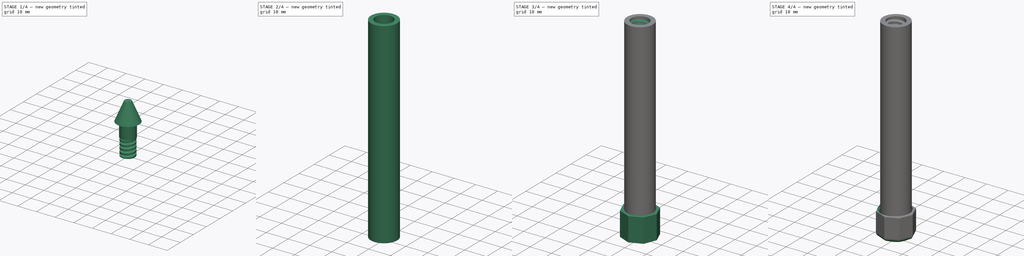
[diagram: build sequence overview — one tinted view per stage of 4, left to right]
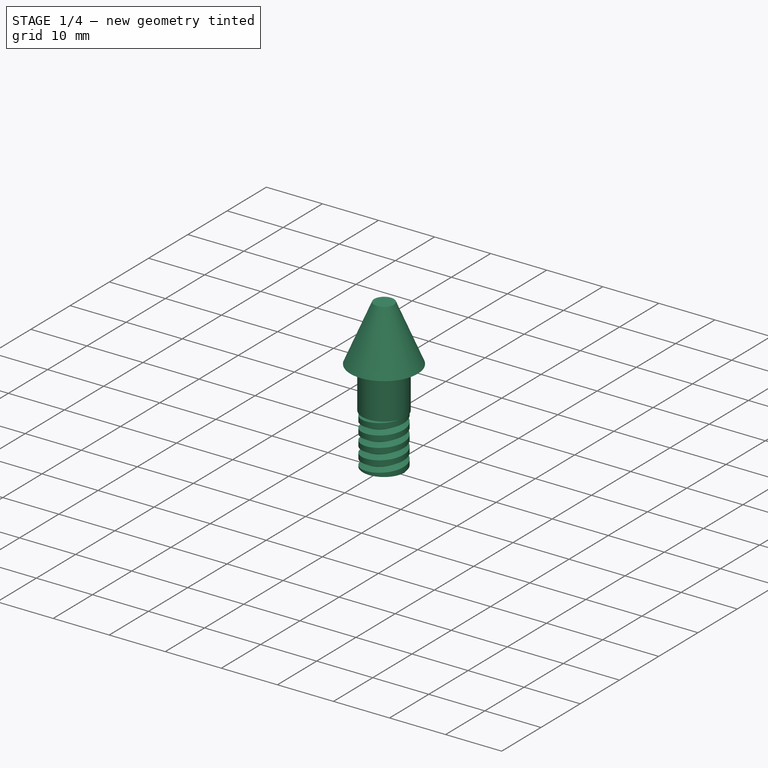
[diagram: stage 1 of 4 — iso view after this stage's code; geometry added in this stage tinted green]
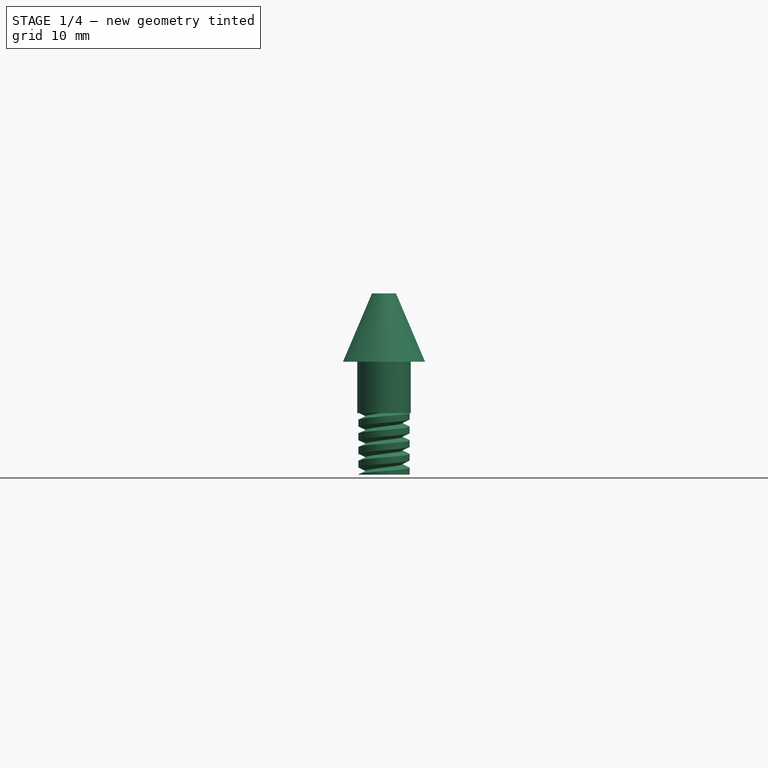
[diagram: stage 1 of 4 — front view after this stage's code; geometry added in this stage tinted green]
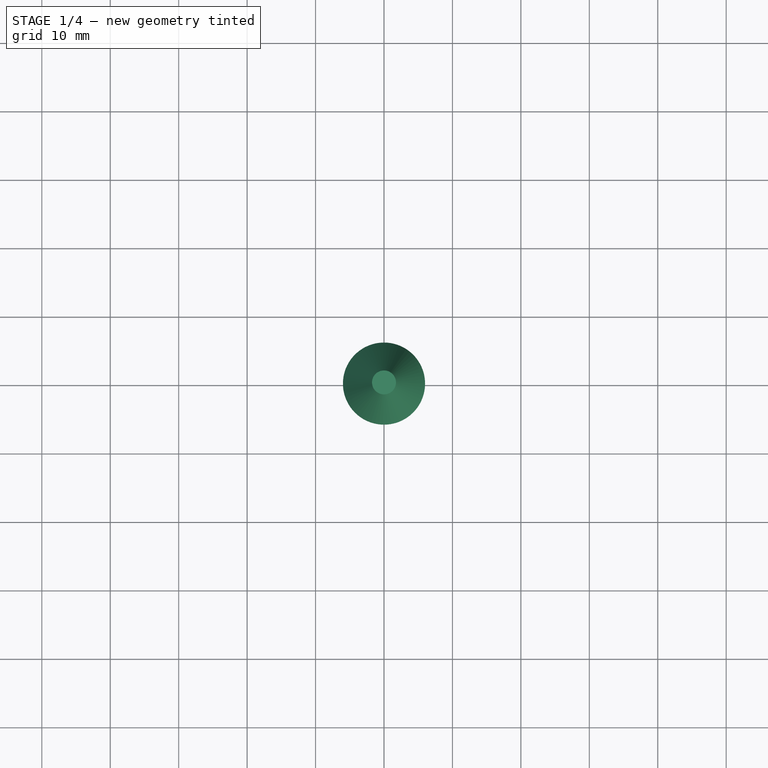
[diagram: stage 1 of 4 — top view after this stage's code; geometry added in this stage tinted green]
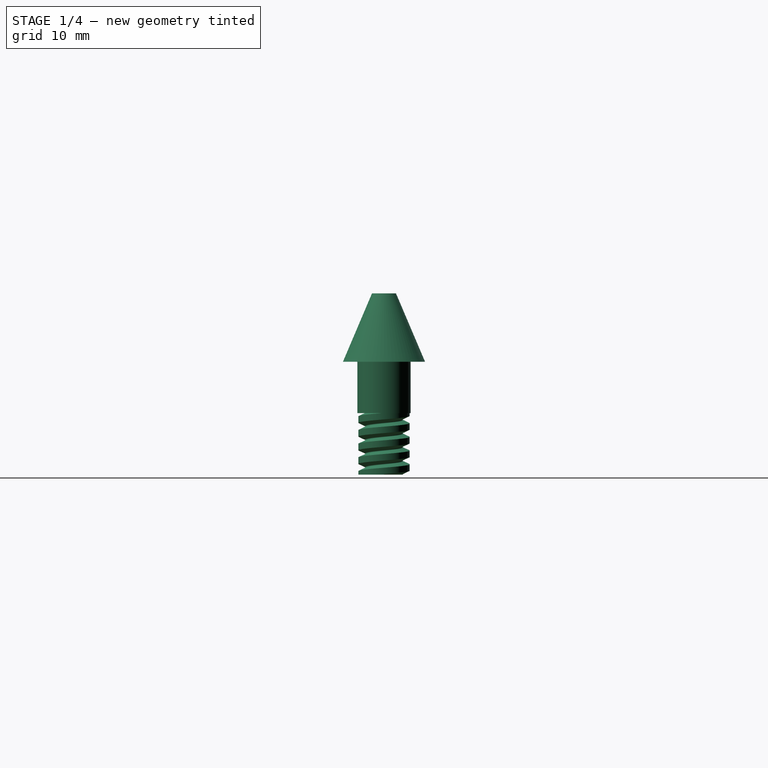
[diagram: stage 1 of 4 — right view after this stage's code; geometry added in this stage tinted green]
FCSTD DOCUMENT  (FreeCAD 2023.131R26244 +5365 (Git))
Label: Lockpick Holder
License: All rights reserved
LicenseURL: http://en.wikipedia.org/wiki/All_rights_reserved
objects: Sketcher::SketchObject×9, PartDesign::Pad×4, PartDesign::Fillet×3, PartDesign::Body×3, PartDesign::SubtractiveHelix×2, PartDesign::AdditiveHelix×2, Part::Plane×2, Spreadsheet::Sheet×1, PartDesign::Hole×1, PartDesign::AdditiveCone×1, Part::FeaturePython×1
note: 63 computed .brp shape members not serialized (recipe doc carries the construction recipe); baked Part::Feature solids carry a one-line shape summary decoded from their .brp

FEATURE [PartDesign::Body] Body  label="Shaft"
  AutoGroupSolids = false
  ClaimAllChildren = false
  ExportMode = 0
  Group = -> [Sketch,Pad,Sketch001,Helix,Sketch005,Helix002]
  InvalidShape = false
  Origin = -> Origin
  Tip = -> Helix002
  TreeRank = 11
  ValidateShape = true
  _ExportChildren = -> [Pad,Helix,Helix002]
  _GroupVersion = 1
FEATURE [Sketcher::SketchObject] Sketch006
  ArcFitTolerance = 1e-06
  AttachmentSupport = -> [XY_Plane002]
  ExternalBSplineMaxDegree = 5
  ExternalBSplineTolerance = 0.0001
  FullyConstrained = true
  InternalTolerance = 1e-06
  InvalidShape = false
  MakeInternals = false
  MapMode = 5
  Support = -> [XY_Plane002]
  TreeRank = 71
  ValidateShape = true
  expr: Constraints[1] = <<Parameters>>.Shaft_Diameter - 2 * <<Parameters>>.Shaft_Wall_Thickness - <<Parameters>>.Inner_Thread_Width / 2
  sketch-geometry (1):
    g0: Circle CenterX=0 CenterY=0 CenterZ=0 NormalX=0 NormalY=0 NormalZ=1 AngleXU=0 Radius=3.75
  constraints (2):
    c: Coincident(g0,g-1)
    c: Diameter(g0) = 7.5
FEATURE [PartDesign::Pad] Pad002  label="Thread body"
  AddSubType = 0
  AlongSketchNormal = false
  AutoTaperInnerAngle = true
  CheckUpToFaceLimits = true
  ClaimChildren = false
  Direction = (0,0,1)
  Fit = 0
  FitJoin = 0
  InnerFit = 0
  InnerFitJoin = 0
  InvalidShape = false
  Length = 9
  Length2 = 100
  Linearize = true
  NewSolid = false
  Profile = -> Sketch006
  Suppress = false
  TaperInnerAngle = 0
  TaperInnerAngleRev = 0
  TreeRank = 72
  Type = 0
  ValidateShape = true
  _ProfileBasedVersion = 1
  expr: Length = <<Parameters>>.Thread_Length + 1
FEATURE [Sketcher::SketchObject] Sketch007
  ArcFitTolerance = 1e-06
  AttachmentSupport = -> [XZ_Plane002]
  ExternalBSplineMaxDegree = 5
  ExternalBSplineTolerance = 0.0001
  FullyConstrained = true
  InternalTolerance = 1e-06
  InvalidShape = false
  MakeInternals = false
  MapMode = 5
  Placement = pos=(0,0,0) rot=(1,0,0;1.5708rad)
  Support = -> [XZ_Plane002]
  TreeRank = 73
  ValidateShape = true
  expr: Constraints[10] = <<Parameters>>.Thread_Length + 1
  expr: Constraints[1] = <<Parameters>>.Inner_Thread_Width + <<Parameters>>.Thread_Tolerance
  expr: Constraints[9] = <<Parameters>>.Shaft_Diameter / 2 - <<Parameters>>.Shaft_Wall_Thickness - <<Parameters>>.Inner_Thread_Width / 4 + 0.05
  sketch-geometry (4):
    g0: LineSegment StartX=3.8 StartY=10.1 StartZ=0 EndX=3.8 EndY=9 EndZ=0
    g1: LineSegment StartX=3.8 StartY=10.1 StartZ=0 EndX=2.8004 EndY=9.64087 EndZ=0
    g2: LineSegment StartX=2.8004 StartY=9.45913 StartZ=0 EndX=3.8 EndY=9 EndZ=0
    g3: ArcOfCircle CenterX=2.84214 CenterY=9.55 CenterZ=0 NormalX=0 NormalY=0 NormalZ=1 AngleXU=0 Radius=0.1 StartAngle=2.00137 EndAngle=4.28182
  constraints (11):
    c: Vertical(g0)
    c: Distance(g0,g0) = 1.1
    c: Coincident(g1,g0)
    c: Coincident(g2,g0)
    c: Equal(g1,g2)
    c: Equal(g1,g0)
    c: Tangent(g1,g3) = -1.5708
    c: Tangent(g2,g3) = -1.5708
    c: Radius(g3) = 0.1
    c: DistanceX(g-1,g0) = 3.8
    c: DistanceY(g-1,g0) = 9
FEATURE [PartDesign::SubtractiveHelix] Helix003  label="Thread Helix"
  AddSubType = 1
  Angle = 0
  Axis = (0,2e-16,1)
  Base = (0,0,0)
  BaseFeature = -> Pad002
  ClaimChildren = false
  Fit = 0
  FitJoin = 0
  Growth = 0
  HasBeenEdited = true
  Height = 10
  InnerFit = 0
  InnerFitJoin = 0
  InvalidShape = false
  LeftHanded = false
  Linearize = true
  Mode = 0
  NewSolid = false
  Outside = false
  Pitch = 2
  Profile = -> Sketch007
  ReferenceAxis = -> Sketch007 [V_Axis]
  Reversed = true
  Suppress = false
  TreeRank = 74
  Turns = 5
  ValidateShape = true
  _ProfileBasedVersion = 1
  expr: Height = <<Parameters>>.Thread_Length + <<Parameters>>.Inner_Thread_Width * 2
  expr: Pitch = <<Parameters>>.Inner_Thread_Pitch
FEATURE [Sketcher::SketchObject] Sketch008
  ArcFitTolerance = 1e-06
  AttachmentSupport = -> [Helix003]
  ExternalBSplineMaxDegree = 5
  ExternalBSplineTolerance = 0.0001
  FullyConstrained = true
  InternalTolerance = 1e-06
  InvalidShape = false
  MakeInternals = false
  MapMode = 5
  Placement = pos=(0,0,9) rot=(0,0,1;0rad)
  Support = -> [Helix003]
  TreeRank = 75
  ValidateShape = true
  expr: Constraints[1] = <<Parameters>>.Shaft_Diameter - 2 * <<Parameters>>.Shaft_Wall_Thickness - 0.2
  sketch-geometry (1):
    g0: Circle CenterX=0 CenterY=0 CenterZ=0 NormalX=0 NormalY=0 NormalZ=1 AngleXU=0 Radius=3.9
  constraints (2):
    c: Coincident(g0,g-1)
    c: Diameter(g0) = 7.8
FEATURE [PartDesign::Pad] Pad003
  AddSubType = 0
  AlongSketchNormal = false
  AutoTaperInnerAngle = true
  BaseFeature = -> Helix003
  CheckUpToFaceLimits = true
  ClaimChildren = false
  Direction = (0,0,1)
  Fit = 0
  FitJoin = 0
  InnerFit = 0
  InnerFitJoin = 0
  InvalidShape = false
  Length = 7.5
  Length2 = 100
  Linearize = true
  NewSolid = false
  Profile = -> Sketch008
  Suppress = false
  TaperInnerAngle = 0
  TaperInnerAngleRev = 0
  TreeRank = 76
  Type = 0
  ValidateShape = true
  _ProfileBasedVersion = 1
  expr: Length = <<Parameters>>.Insert_Base_Length / 2
FEATURE [PartDesign::AdditiveCone] Cone
  AddSubType = 0
  Angle = 360
  AttacherType = Attacher::AttachEngine3D
  AttachmentSupport = -> [Pad003]
  BaseFeature = -> Pad003
  Height = 10
  InvalidShape = false
  MapMode = 5
  NewSolid = false
  Placement = pos=(0,0,16.5) rot=(0,0,1;0rad)
  Radius1 = 6
  Radius2 = 1.75
  Support = -> [Pad003]
  Suppress = false
  TreeRank = 77
  ValidateShape = true
  expr: Radius1 = <<Parameters>>.Shaft_Diameter / 2
  expr: Radius2 = (<<Parameters>>.Insert_Width + 1) / 2
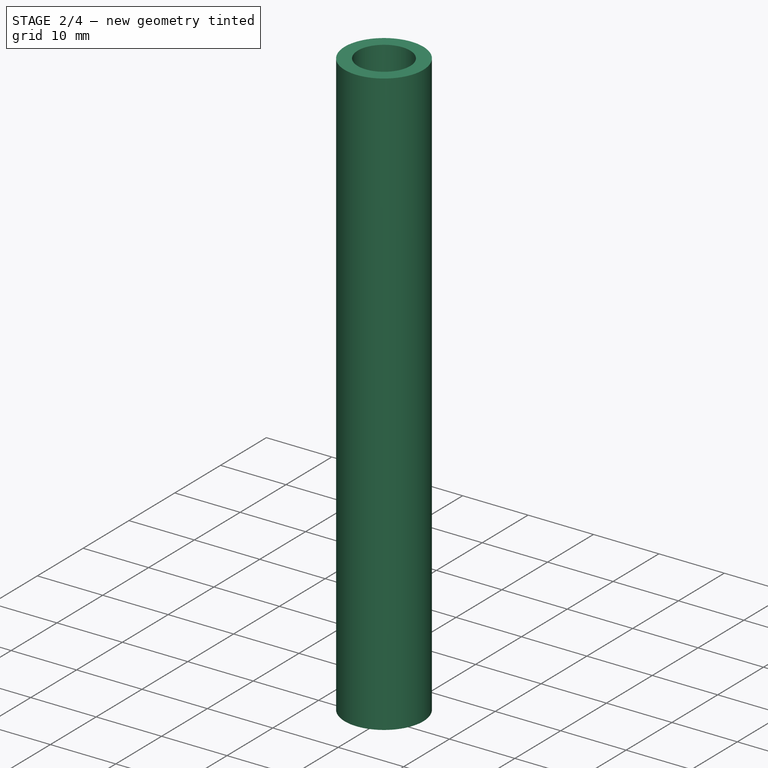
[diagram: stage 2 of 4 — iso view after this stage's code; geometry added in this stage tinted green]
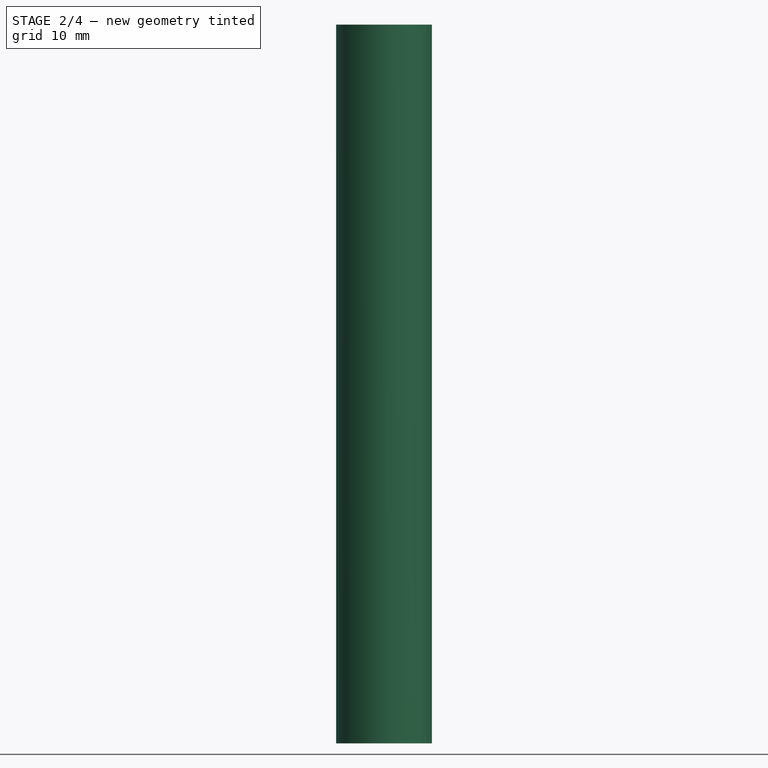
[diagram: stage 2 of 4 — front view after this stage's code; geometry added in this stage tinted green]
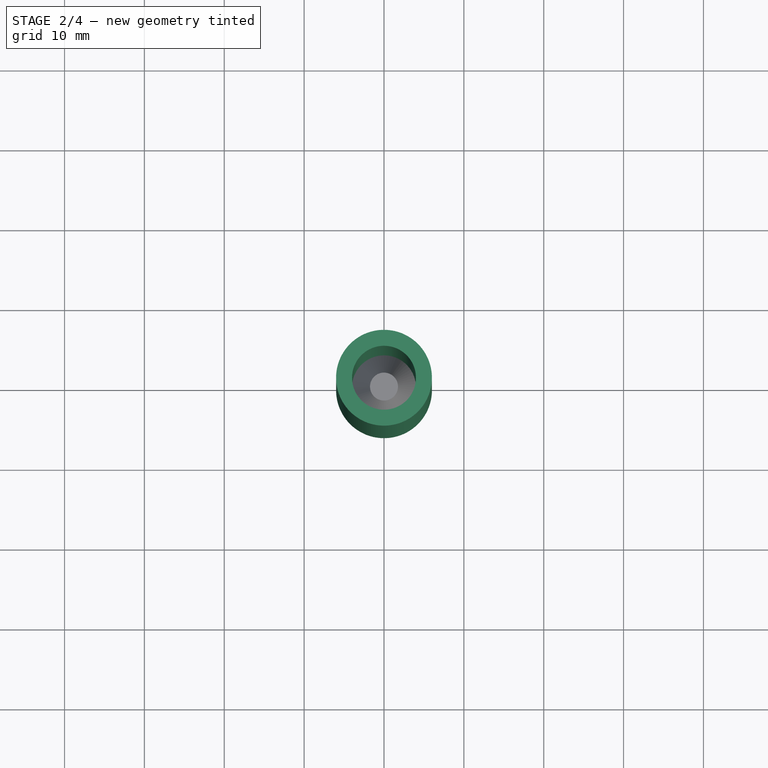
[diagram: stage 2 of 4 — top view after this stage's code; geometry added in this stage tinted green]
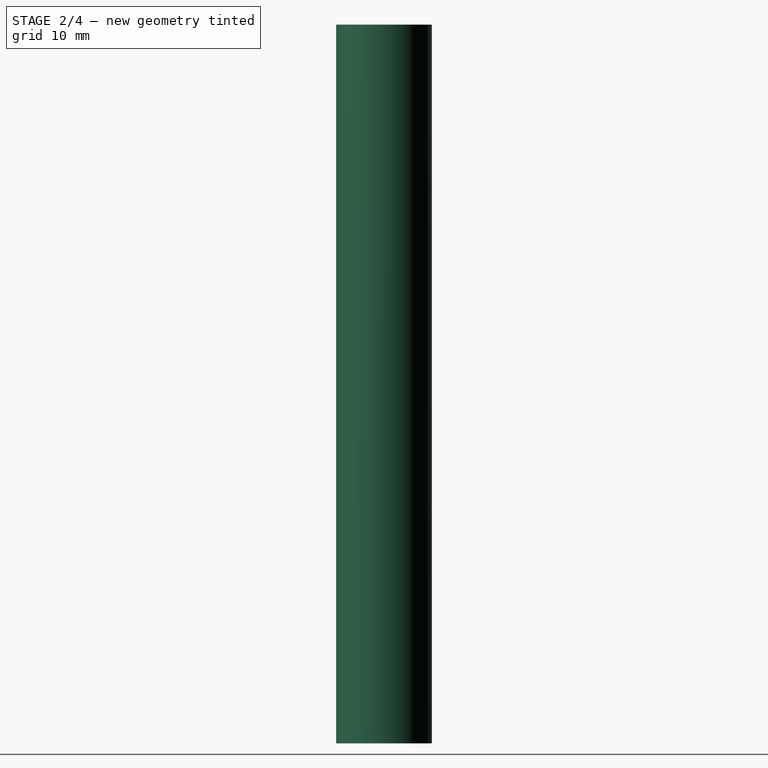
[diagram: stage 2 of 4 — right view after this stage's code; geometry added in this stage tinted green]
FEATURE [Spreadsheet::Sheet] Spreadsheet  label="Parameters"
  PythonMode = false
  ShowCells = 0
  TreeRank = 10
  cells = A2=Insert Thickness; B2(Insert_Thickness)=0.7; A3=Insert Width; B3(Insert_Width)=2.5; A4=Insert Base Length; B4(Insert_Base_Length)=15; A6=Shaft Diameter; B6(Shaft_Diameter)=12; A7=Shaft Length; B7(Shaft_Length)=90; A8=Shaft Wall Thickness; B8(Shaft_Wall_Thickness)=2; A10=Inner Thread Width; B10(Inner_Thread_Width)=1; A11=Inner Thread Pitch; B11(Inner_Thread_Pitch)==B10 * 2; A12=Outer Thread Width; B12(Outer_Thread_Width)=1.5; A13=Outer Thread Pitch; B13(Outer_Thread_Pitch)==B12 * 2; A14=Threaded End Length; B14(Thread_Length)=8; A15=Thread Tolerance; B15(Thread_Tolerance)=0.1; A17=Thumb Screw Diameter; B17(Thumb_Screw_Diameter)==B6 + B12 + 2; A18=Thumb Screw Top Fillet; B18(Thumb_Screw_Top_Fillet)=2; A19=Tumb Screw Bottom Fillet; B19(Thumb_Screw_Bottom_Fillet)=0.5
FEATURE [Sketcher::SketchObject] Sketch  label="Shaft Sketch"
  ArcFitTolerance = 1e-06
  AttachmentSupport = -> [XY_Plane]
  ExternalBSplineMaxDegree = 5
  ExternalBSplineTolerance = 0.0001
  FullyConstrained = true
  InternalTolerance = 1e-06
  InvalidShape = false
  MakeInternals = false
  MapMode = 5
  Support = -> [XY_Plane]
  TreeRank = 36
  ValidateShape = true
  expr: Constraints[1] = <<Parameters>>.Shaft_Diameter
  expr: Constraints[3] = <<Parameters>>.Shaft_Diameter - 2 * <<Parameters>>.Shaft_Wall_Thickness
  sketch-geometry (2):
    g0: Circle CenterX=0 CenterY=0 CenterZ=0 NormalX=0 NormalY=0 NormalZ=1 AngleXU=0 Radius=6
    g1: Circle CenterX=0 CenterY=0 CenterZ=0 NormalX=0 NormalY=0 NormalZ=1 AngleXU=0 Radius=4
  constraints (4):
    c: Coincident(g0,g-1)
    c: Diameter(g0) = 12
    c: Coincident(g1,g0)
    c: Diameter(g1) = 8
FEATURE [PartDesign::Pad] Pad  label="Shaft Pad"
  AddSubType = 0
  AlongSketchNormal = false
  AutoTaperInnerAngle = true
  CheckUpToFaceLimits = true
  ClaimChildren = false
  Direction = (0,0,1)
  Fit = 0
  FitJoin = 0
  InnerFit = 0
  InnerFitJoin = 0
  InvalidShape = false
  Length = 90
  Length2 = 100
  Linearize = true
  NewSolid = false
  Profile = -> Sketch
  Suppress = false
  TaperInnerAngle = 0
  TaperInnerAngleRev = 0
  TreeRank = 37
  Type = 0
  ValidateShape = true
  _ProfileBasedVersion = 1
  expr: Length = <<Parameters>>.Shaft_Length
FEATURE [Part::Plane] Plane  label="Virtical Plane"
  AttacherType = Attacher::AttachEngine3D
  InvalidShape = false
  Length = 20
  Placement = pos=(0,-10,29) rot=(0,1,0;1.5708rad)
  TreeRank = 87
  ValidateShape = true
  Width = 20
  expr: Placement.Base.z = <<Parameters>>.Thread_Length + 20 + 1
FEATURE [Part::Plane] Plane001  label="Horizontal Plane"
  AttacherType = Attacher::AttachEngine3D
  InvalidShape = false
  Length = 20
  Placement = pos=(-10,-10,9) rot=(0,0,1;0rad)
  TreeRank = 88
  ValidateShape = true
  Width = 20
  expr: Placement.Base.z = <<Parameters>>.Thread_Length + 1
FEATURE [PartDesign::Fillet] Fillet002
  AddSubType = 0
  Base = -> Cone [Edge53]
  BaseFeature = -> Cone
  InvalidShape = false
  NewSolid = false
  Placement = pos=(0,0,16.5) rot=(0,0,1;0rad)
  Radius = 1
  SupportTransform = false
  Suppress = false
  TreeRank = 89
  ValidateShape = true
FEATURE [PartDesign::Body] Body002  label="Clamp"
  AutoGroupSolids = false
  ClaimAllChildren = false
  ExportMode = 0
  Group = -> [Sketch006,Pad002,Sketch007,Helix003,Sketch008,Pad003,Cone,Fillet002]
  InvalidShape = false
  Origin = -> Origin002
  Tip = -> Fillet002
  TreeRank = 86
  ValidateShape = true
  _ExportChildren = -> [Pad002,Helix003,Pad003,Cone,Fillet002]
  _GroupVersion = 1
FEATURE [Part::FeaturePython] Slice  # WARN: FeaturePython — macro-defined, semantics opaque (R4)
  Base = -> Body002
  InvalidShape = false
  Mode = 1
  Tolerance = 0
  Tools = -> [Plane,Plane001]
  TreeRank = 85
  ValidateShape = true
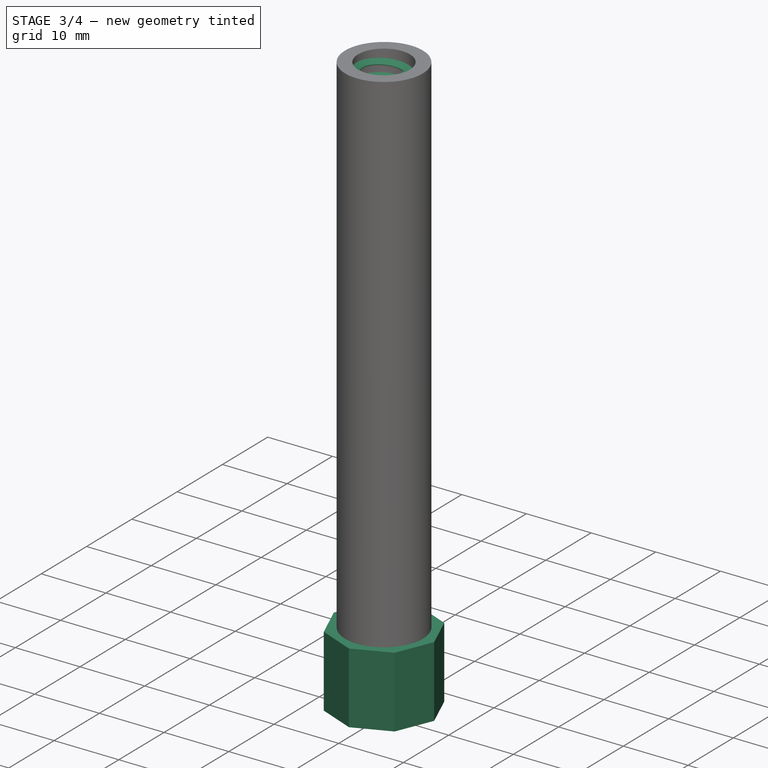
[diagram: stage 3 of 4 — iso view after this stage's code; geometry added in this stage tinted green]
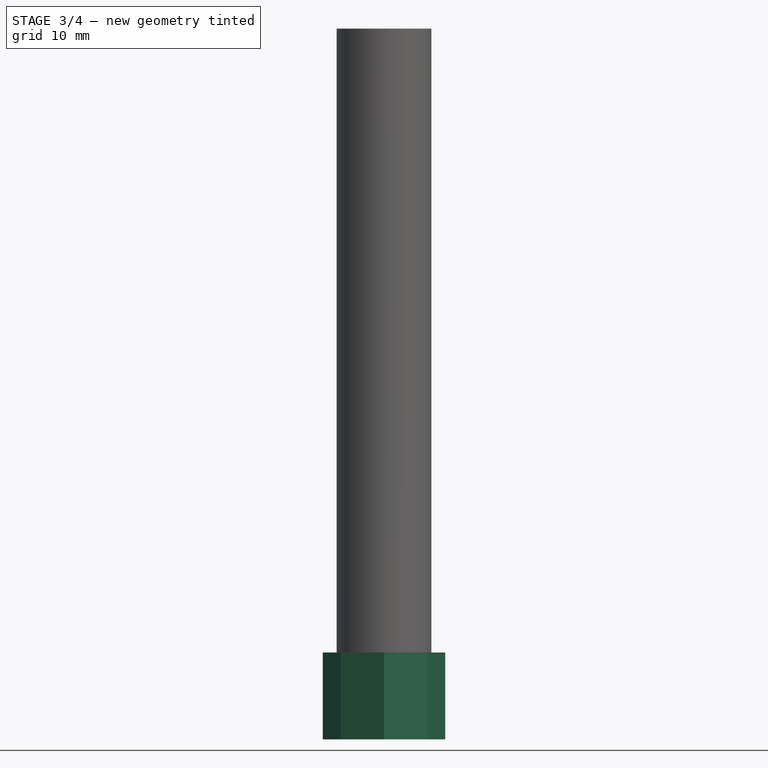
[diagram: stage 3 of 4 — front view after this stage's code; geometry added in this stage tinted green]
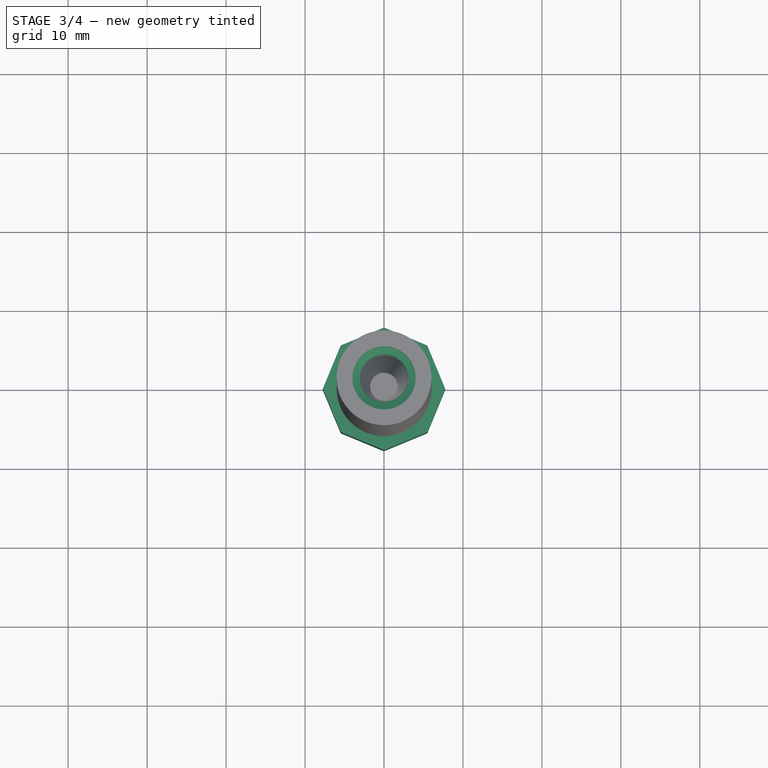
[diagram: stage 3 of 4 — top view after this stage's code; geometry added in this stage tinted green]
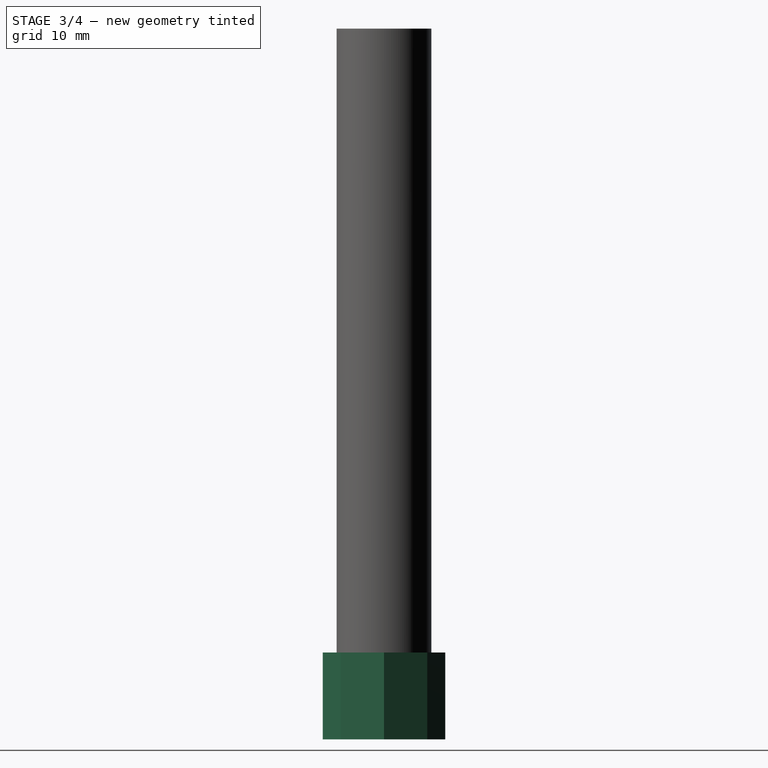
[diagram: stage 3 of 4 — right view after this stage's code; geometry added in this stage tinted green]
FEATURE [Sketcher::SketchObject] Sketch001  label="Shaft Thread Sketch"
  ArcFitTolerance = 1e-06
  AttachmentSupport = -> [XZ_Plane]
  ExternalBSplineMaxDegree = 5
  ExternalBSplineTolerance = 0.0001
  FullyConstrained = true
  InternalTolerance = 1e-06
  InvalidShape = false
  MakeInternals = false
  MapMode = 5
  Placement = pos=(0,0,0) rot=(1,0,0;1.5708rad)
  Support = -> [XZ_Plane]
  TreeRank = 38
  ValidateShape = true
  expr: Constraints[1] = Spreadsheet.Outer_Thread_Width
  expr: Constraints[5] = <<Parameters>>.Shaft_Diameter / 2 - 0.1
  sketch-geometry (2):
    g0: LineSegment StartX=-5.9 StartY=1.5 StartZ=0 EndX=-5.9 EndY=0 EndZ=0
    g1: ArcOfCircle CenterX=-5.9 CenterY=0.75 CenterZ=0 NormalX=0 NormalY=0 NormalZ=1 AngleXU=0 Radius=0.75 StartAngle=1.5708 EndAngle=4.71239
  constraints (7):
    c: Vertical(g0)
    c: Distance(g0,g0) = 1.5
    c: Coincident(g1,g0)
    c: Coincident(g1,g0)
    c: PointOnObject(g1,g0)
    c: DistanceX(g0,g-1) = 5.9
    c: PointOnObject(g0,g-1)
FEATURE [Sketcher::SketchObject] Sketch002
  ArcFitTolerance = 1e-06
  ExternalBSplineMaxDegree = 5
  ExternalBSplineTolerance = 0.0001
  FullyConstrained = true
  InternalTolerance = 1e-06
  InvalidShape = false
  MakeInternals = false
  MapMode = 2
  TreeRank = 50
  ValidateShape = true
  expr: Constraints[25] = <<Parameters>>.Thumb_Screw_Diameter
  sketch-geometry (9):
    g0: LineSegment StartX=0 StartY=7.75 StartZ=0 EndX=-5.48008 EndY=5.48008 EndZ=0
    g1: LineSegment StartX=-5.48008 StartY=5.48008 StartZ=0 EndX=-7.75 EndY=2.0215e-12 EndZ=0
    g2: LineSegment StartX=-7.75 StartY=2.0214e-12 StartZ=0 EndX=-5.48008 EndY=-5.48008 EndZ=0
    g3: LineSegment StartX=-5.48008 StartY=-5.48008 StartZ=0 EndX=-4.0421e-12 EndY=-7.75 EndZ=0
    g4: LineSegment StartX=-4.0425e-12 StartY=-7.75 StartZ=0 EndX=5.48008 EndY=-5.48008 EndZ=0
    g5: LineSegment StartX=5.48008 StartY=-5.48008 StartZ=0 EndX=7.75 EndY=-6.0645e-12 EndZ=0
    g6: LineSegment StartX=7.75 StartY=-6.0648e-12 StartZ=0 EndX=5.48008 EndY=5.48008 EndZ=0
    g7: LineSegment StartX=5.48008 StartY=5.48008 StartZ=0 EndX=0 EndY=7.75 EndZ=0
    g8: Circle [constr] CenterX=0 CenterY=0 CenterZ=0 NormalX=0 NormalY=0 NormalZ=1 AngleXU=0 Radius=7.75
  constraints (20):
    c: Coincident(g0,g1)
    c: Coincident(g1,g2)
    c: Coincident(g2,g3)
    c: Coincident(g3,g4)
    c: Coincident(g4,g5)
    c: Coincident(g5,g6)
    c: Coincident(g6,g7)
    c: Coincident(g7,g0)
    c: Equal(g0, g1-g7) x7
    c: PointOnObject(g0,g8)
    c: PointOnObject(g1,g8)
    c: PointOnObject(g2,g8)
    c: PointOnObject(g3,g8)
    c: PointOnObject(g4,g8)
    c: PointOnObject(g5,g8)
    c: PointOnObject(g6,g8)
    c: PointOnObject(g7,g8)
    c: Coincident(g8,g-1)
    c: PointOnObject(g7,g-2)
    c: Diameter(g8) = 15.5
FEATURE [PartDesign::Pad] Pad001  label="Tumb Screw Body"
  AddSubType = 0
  AlongSketchNormal = false
  AutoTaperInnerAngle = true
  CheckUpToFaceLimits = true
  ClaimChildren = false
  Direction = (0,0,1)
  Fit = 0
  FitJoin = 0
  InnerFit = 0
  InnerFitJoin = 0
  InvalidShape = false
  Length = 11
  Length2 = 100
  Linearize = true
  NewSolid = false
  Profile = -> Sketch002
  Suppress = false
  TaperInnerAngle = 0
  TaperInnerAngleRev = 0
  TreeRank = 51
  Type = 0
  ValidateShape = true
  _ProfileBasedVersion = 1
  expr: Length = <<Parameters>>.Thread_Length + 3
FEATURE [PartDesign::Body] Body001  label="Thumb Screw"
  AutoGroupSolids = false
  ClaimAllChildren = false
  ExportMode = 0
  Group = -> [Sketch002,Pad001,Sketch003,Hole,Sketch004,Helix001,Fillet,Fillet001]
  InvalidShape = false
  Origin = -> Origin001
  Placement = pos=(0,0,-2) rot=(0,0,1;0rad)
  Tip = -> Fillet001
  TreeRank = 49
  ValidateShape = true
  _ExportChildren = -> [Pad001,Hole,Helix001,Fillet,Fillet001]
  _GroupVersion = 1
FEATURE [PartDesign::AdditiveHelix] Helix
  AddSubType = 0
  Angle = 0
  Axis = (0,-2e-16,1)
  Base = (0,0,0)
  BaseFeature = -> Pad
  ClaimChildren = false
  Fit = 0
  FitJoin = 0
  Growth = 0
  HasBeenEdited = true
  Height = 8
  InnerFit = 0
  InnerFitJoin = 0
  InvalidShape = false
  LeftHanded = false
  Linearize = true
  Mode = 0
  NewSolid = false
  Outside = false
  Pitch = 3
  Profile = -> Sketch001
  ReferenceAxis = -> Sketch001 [V_Axis]
  Suppress = false
  TreeRank = 58
  Turns = 2.66667
  ValidateShape = true
  _ProfileBasedVersion = 1
  expr: Height = <<Parameters>>.Thread_Length
  expr: Pitch = <<Parameters>>.Outer_Thread_Pitch
FEATURE [Sketcher::SketchObject] Sketch005  label="Inner Thread Sketch"
  ArcFitTolerance = 1e-06
  AttachmentSupport = -> [XZ_Plane]
  ExternalBSplineMaxDegree = 5
  ExternalBSplineTolerance = 0.0001
  FullyConstrained = true
  InternalTolerance = 1e-06
  InvalidShape = false
  MakeInternals = false
  MapMode = 5
  Placement = pos=(0,0,0) rot=(1,0,0;1.5708rad)
  Support = -> [XZ_Plane]
  TreeRank = 59
  ValidateShape = true
  expr: Constraints[10] = <<Parameters>>.Shaft_Length
  expr: Constraints[1] = <<Parameters>>.Inner_Thread_Width
  expr: Constraints[9] = <<Parameters>>.Shaft_Diameter / 2 - <<Parameters>>.Shaft_Wall_Thickness
  sketch-geometry (4):
    g0: LineSegment StartX=4 StartY=89 StartZ=0 EndX=4 EndY=90 EndZ=0
    g1: LineSegment StartX=4 StartY=90 StartZ=0 EndX=3.08735 EndY=89.5913 EndZ=0
    g2: LineSegment StartX=3.08735 StartY=89.4087 StartZ=0 EndX=4 EndY=89 EndZ=0
    g3: ArcOfCircle CenterX=3.12822 CenterY=89.5 CenterZ=0 NormalX=0 NormalY=0 NormalZ=1 AngleXU=0 Radius=0.1 StartAngle=1.99186 EndAngle=4.29132
  constraints (11):
    c: Vertical(g0)
    c: Distance(g0,g0) = 1
    c: Coincident(g1,g0)
    c: Coincident(g2,g0)
    c: Equal(g1,g2)
    c: Equal(g1,g0)
    c: Tangent(g1,g3) = -1.5708
    c: Tangent(g2,g3) = -1.5708
    c: Radius(g3) = 0.1
    c: DistanceX(g-1,g0) = 4
    c: DistanceY(g-1,g0) = 90
FEATURE [PartDesign::AdditiveHelix] Helix002  label="Inner Threads"
  AddSubType = 0
  Angle = 0
  Axis = (0,-2e-16,1)
  Base = (0,0,0)
  BaseFeature = -> Helix
  ClaimChildren = false
  Fit = 0
  FitJoin = 0
  Growth = 0
  HasBeenEdited = true
  Height = 8
  InnerFit = 0
  InnerFitJoin = 0
  InvalidShape = false
  LeftHanded = false
  Linearize = true
  Mode = 0
  NewSolid = false
  Outside = false
  Pitch = 2
  Profile = -> Sketch005
  ReferenceAxis = -> Sketch005 [V_Axis]
  Reversed = true
  Suppress = false
  TreeRank = 60
  Turns = 4
  ValidateShape = true
  _ProfileBasedVersion = 1
  expr: Height = <<Parameters>>.Thread_Length
  expr: Pitch = <<Parameters>>.Inner_Thread_Pitch
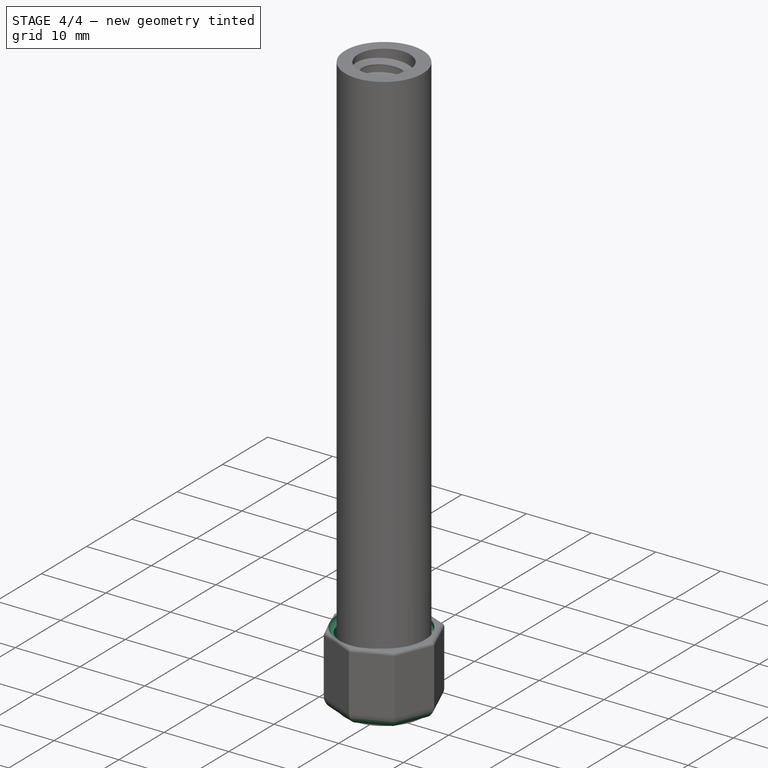
[diagram: stage 4 of 4 — iso view after this stage's code; geometry added in this stage tinted green]
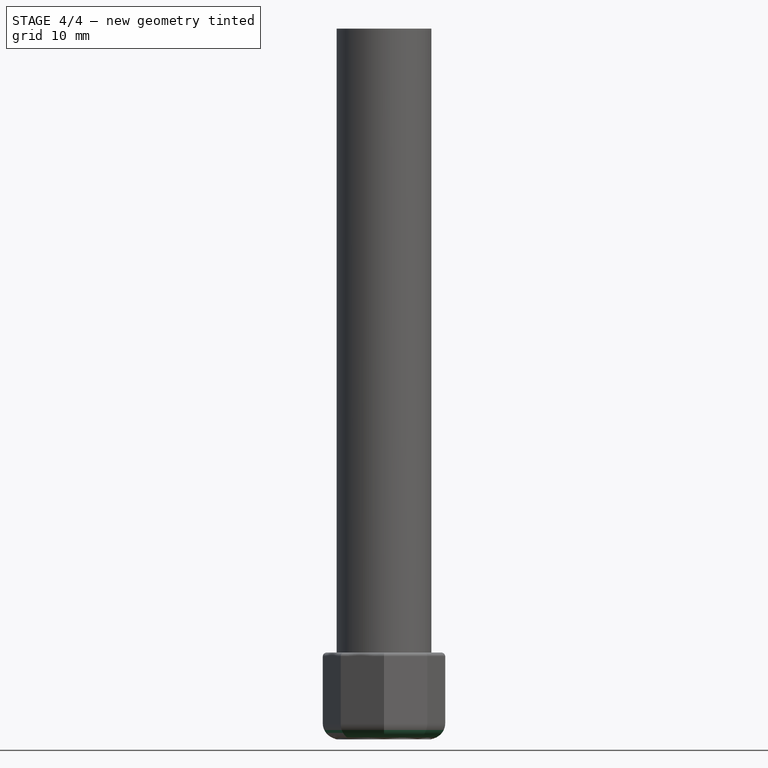
[diagram: stage 4 of 4 — front view after this stage's code; geometry added in this stage tinted green]
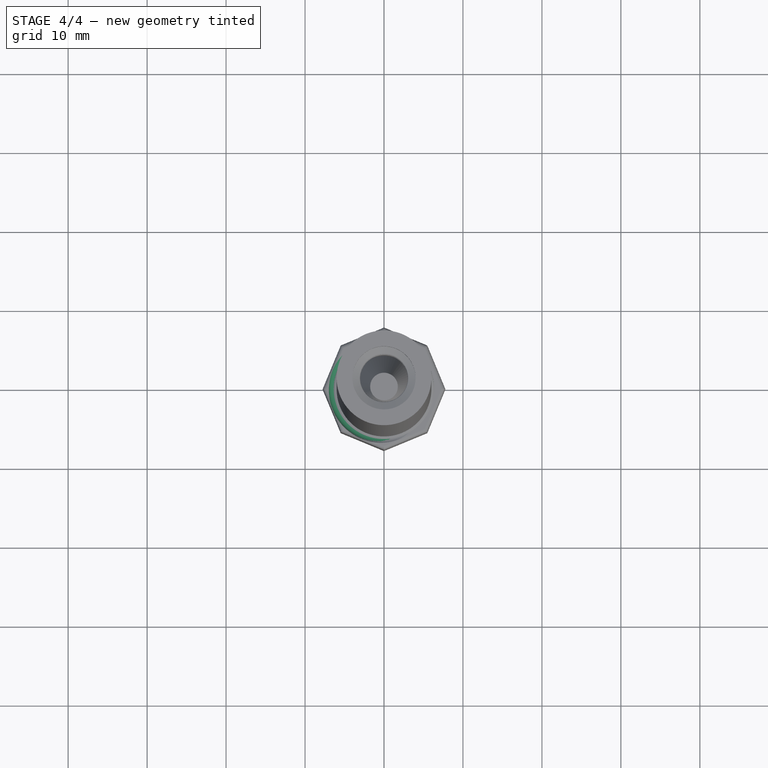
[diagram: stage 4 of 4 — top view after this stage's code; geometry added in this stage tinted green]
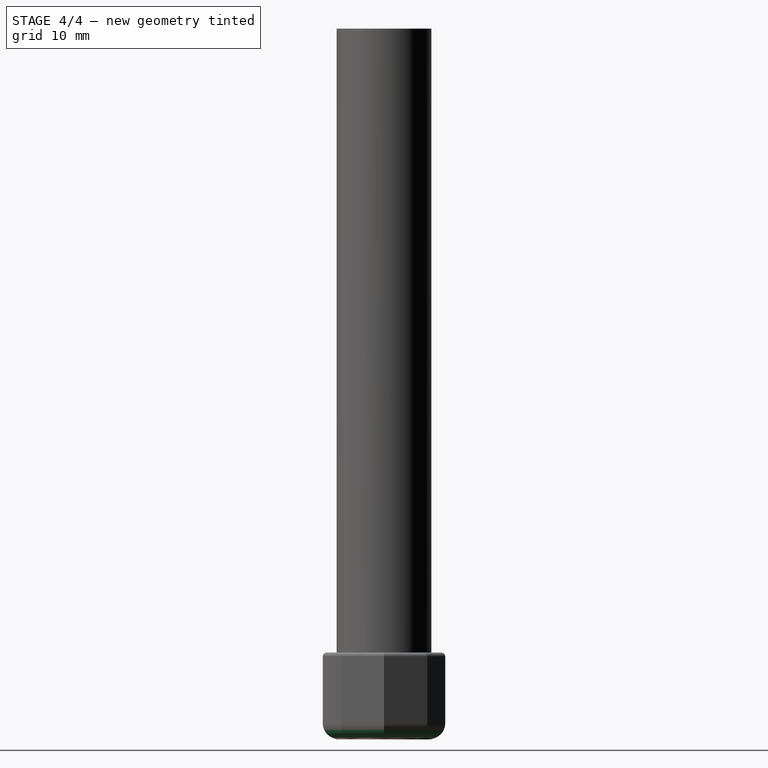
[diagram: stage 4 of 4 — right view after this stage's code; geometry added in this stage tinted green]
FEATURE [Sketcher::SketchObject] Sketch003
  ArcFitTolerance = 1e-06
  AttachmentSupport = -> [Pad001]
  ExternalBSplineMaxDegree = 5
  ExternalBSplineTolerance = 0.0001
  FullyConstrained = true
  InternalTolerance = 1e-06
  InvalidShape = false
  MakeInternals = false
  MapMode = 5
  Placement = pos=(0,0,11) rot=(0,0,1;0rad)
  Support = -> [Pad001]
  TreeRank = 52
  ValidateShape = true
  expr: Constraints[1] = <<Parameters>>.Shaft_Diameter + Spreadsheet.Outer_Thread_Width / 2
  sketch-geometry (1):
    g0: Circle CenterX=0 CenterY=0 CenterZ=0 NormalX=0 NormalY=0 NormalZ=1 AngleXU=0 Radius=6.375
  constraints (2):
    c: Coincident(g0,g-1)
    c: Diameter(g0) = 12.75
FEATURE [PartDesign::Hole] Hole  label="Thumb Screw Shaft Hole"
  AddSubType = 1
  BaseFeature = -> Pad001
  ClaimChildren = false
  CustomThreadClearance = 0
  Depth = 10
  DepthType = 0
  Diameter = 12.75
  DrillForDepth = false
  DrillPoint = 0
  DrillPointAngle = 118
  Fit = 0
  FitJoin = 0
  HoleCutCountersinkAngle = 90
  HoleCutCustomValues = false
  HoleCutDepth = 0
  HoleCutDiameter = 9.6
  HoleCutType = 0
  InnerFit = 0
  InnerFitJoin = 0
  InvalidShape = false
  Linearize = true
  ModelThread = false
  NewSolid = false
  Profile = -> Sketch003
  Suppress = false
  Tapered = false
  TaperedAngle = 90
  ThreadClass = 0
  ThreadDepth = 10
  ThreadDepthType = 0
  ThreadDirection = 0
  ThreadFit = 0
  ThreadSize = 0
  ThreadType = 0
  Threaded = false
  TreeRank = 53
  UseCustomThreadClearance = false
  ValidateShape = true
  _ProfileBasedVersion = 1
  expr: Depth = <<Parameters>>.Thread_Length + 2
  expr: Diameter = <<Parameters>>.Shaft_Diameter + Spreadsheet.Outer_Thread_Width / 2
FEATURE [Sketcher::SketchObject] Sketch004
  ArcFitTolerance = 1e-06
  AttachmentSupport = -> [XZ_Plane001]
  ExternalBSplineMaxDegree = 5
  ExternalBSplineTolerance = 0.0001
  FullyConstrained = true
  InternalTolerance = 1e-06
  InvalidShape = false
  MakeInternals = false
  MapMode = 5
  Placement = pos=(0,0,0) rot=(1,0,0;1.5708rad)
  Support = -> [XZ_Plane001]
  TreeRank = 54
  ValidateShape = true
  expr: Constraints[1] = Spreadsheet.Outer_Thread_Width
  expr: Constraints[5] = -(<<Parameters>>.Shaft_Diameter + Spreadsheet.Outer_Thread_Width / 2) / 2 + 0.1
  sketch-geometry (2):
    g0: LineSegment StartX=-6.275 StartY=1 StartZ=0 EndX=-6.275 EndY=2.5 EndZ=0
    g1: ArcOfCircle CenterX=-6.275 CenterY=1.75 CenterZ=0 NormalX=0 NormalY=0 NormalZ=1 AngleXU=0 Radius=0.75 StartAngle=1.5708 EndAngle=4.71239
  constraints (7):
    c: Vertical(g0)
    c: Distance(g0,g0) = 1.5
    c: Coincident(g1,g0)
    c: Coincident(g1,g0)
    c: PointOnObject(g1,g0)
    c: DistanceX(g-1,g0) = -6.275
    c: DistanceY(g-1,g0) = 1
FEATURE [PartDesign::SubtractiveHelix] Helix001  label="Thumb Screw Threads"
  AddSubType = 1
  Angle = 0
  Axis = (0,-2e-16,1)
  Base = (0,0,0)
  BaseFeature = -> Hole
  ClaimChildren = false
  Fit = 0
  FitJoin = 0
  Growth = 0
  HasBeenEdited = true
  Height = 10
  InnerFit = 0
  InnerFitJoin = 0
  InvalidShape = false
  LeftHanded = false
  Linearize = true
  Mode = 0
  NewSolid = false
  Outside = false
  Pitch = 3
  Profile = -> Sketch004
  ReferenceAxis = -> Sketch004 [V_Axis]
  Suppress = false
  TreeRank = 55
  Turns = 3.33333
  ValidateShape = true
  _ProfileBasedVersion = 1
  expr: Height = <<Parameters>>.Thread_Length + 2
  expr: Pitch = Spreadsheet.Outer_Thread_Pitch
FEATURE [PartDesign::Fillet] Fillet  label="Top Fillet"
  AddSubType = 0
  Base = -> Helix001 [Edge12,Edge11,Edge9,Edge3,Edge6,Edge15,Edge14,Edge13]
  BaseFeature = -> Helix001
  InvalidShape = false
  NewSolid = false
  Radius = 2
  SupportTransform = false
  Suppress = false
  TreeRank = 56
  ValidateShape = true
  expr: Radius = <<Parameters>>.Thumb_Screw_Top_Fillet
FEATURE [PartDesign::Fillet] Fillet001  label="Bottom Fillet"
  AddSubType = 0
  Base = -> Fillet [Edge12,Edge7,Edge3,Edge11,Edge13,Edge15,Edge16,Edge14]
  BaseFeature = -> Fillet
  InvalidShape = false
  NewSolid = false
  Radius = 0.5
  SupportTransform = false
  Suppress = false
  TreeRank = 57
  ValidateShape = true
  expr: Radius = <<Parameters>>.Thumb_Screw_Bottom_Fillet
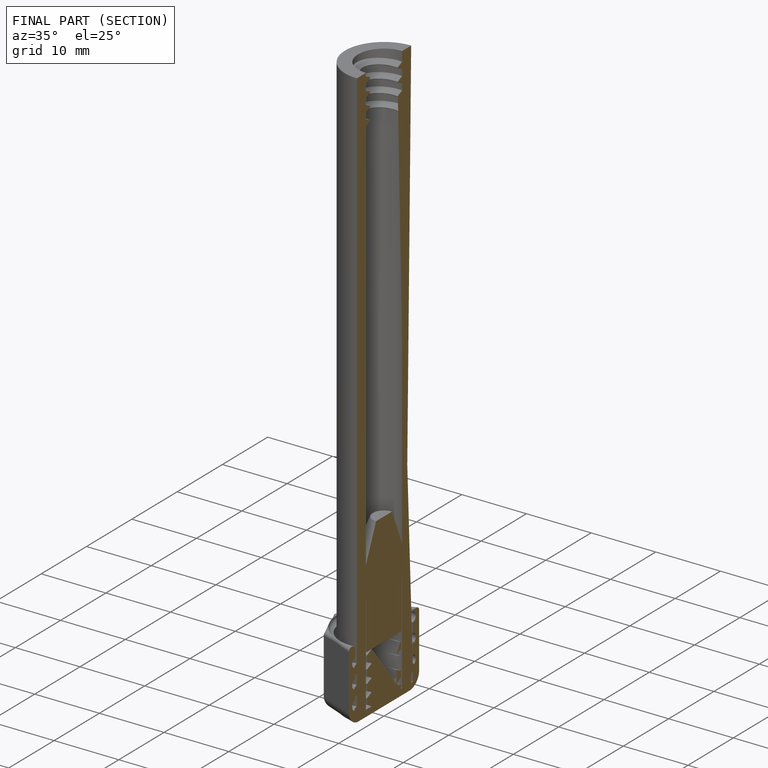
[diagram: finished part — half-section view (interior)]
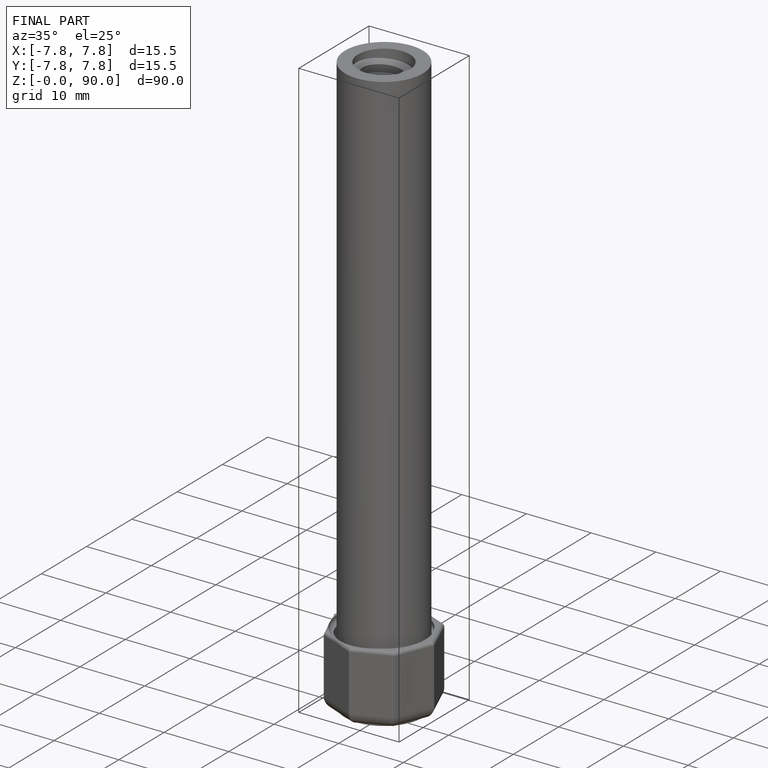
[diagram: finished part — iso view with bounding-box wireframe]
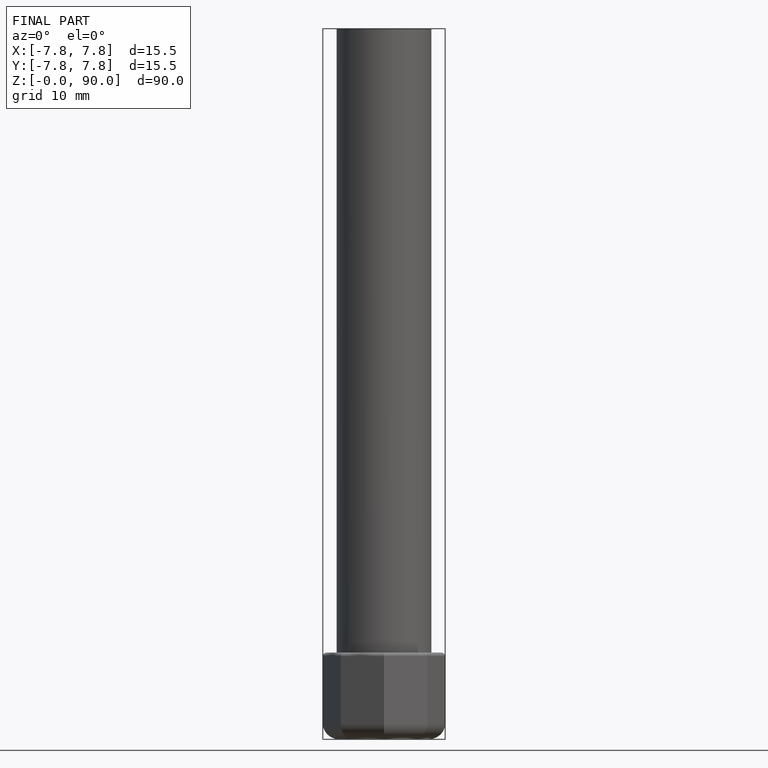
[diagram: finished part — front view with bounding-box wireframe]
